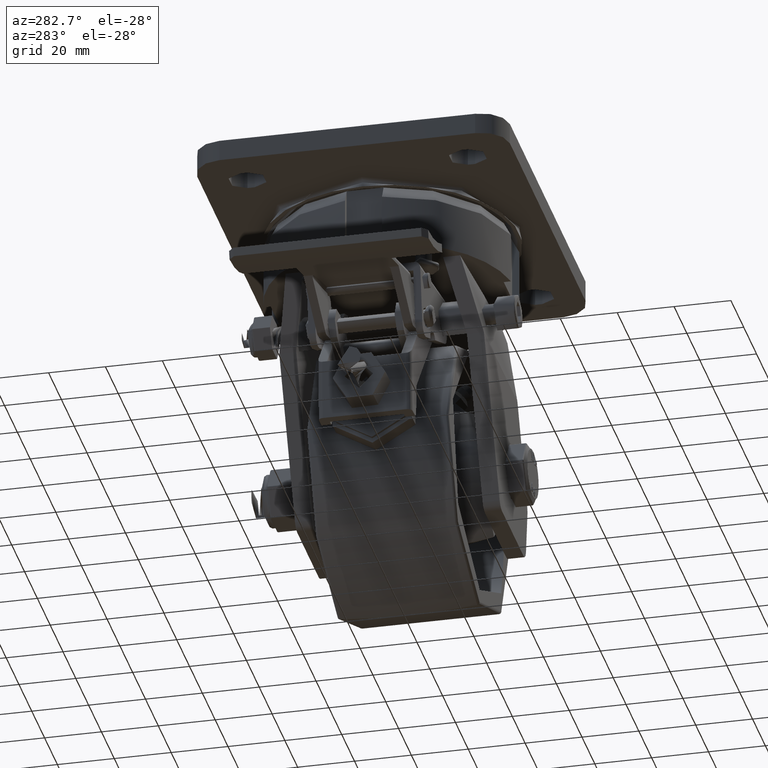
[diagram: clean part render]
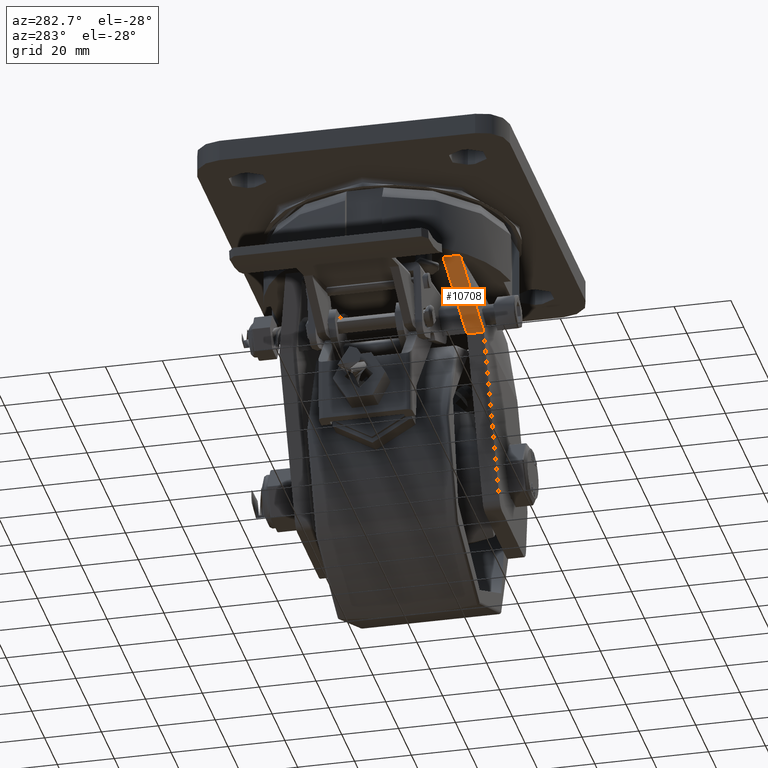
[diagram: same view with one face highlighted and labeled with its STEP entity id]
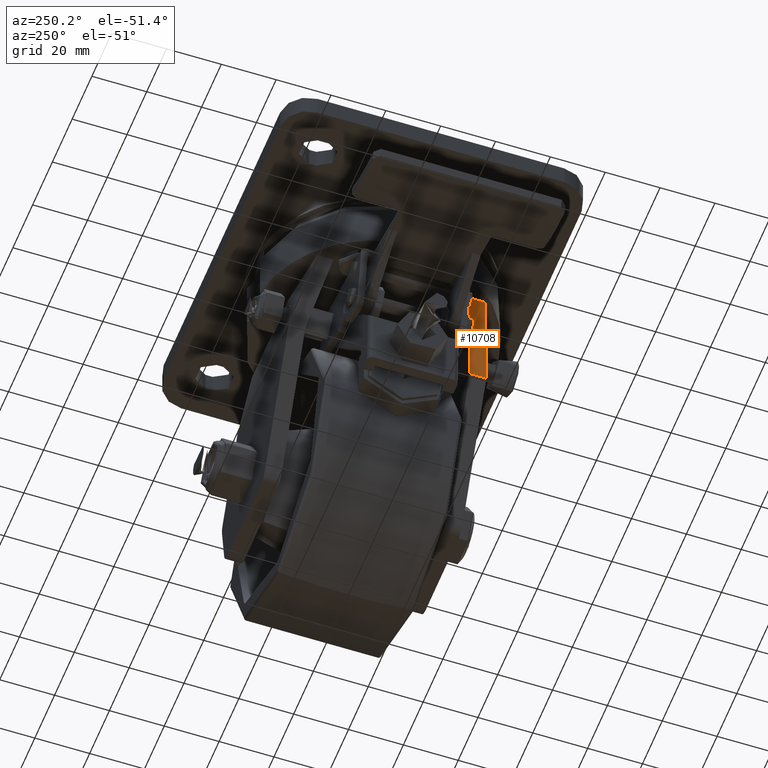
[diagram: same view with one face highlighted and labeled with its STEP entity id]
A machine part, auxiliary view. The second image highlights one B-rep face of the part: STEP entity #10708.
A second angle (auxiliary view) of the same face is appended — the face is thin or edge-on in the first view.
In plain terms, the highlighted face is a freeform B-spline surface patch.
Its self-contained STEP definition (entity closure, byte-faithful):
#181=B_SPLINE_SURFACE_WITH_KNOTS('',3,3,((#28149,#28150,#28151,#28152,#28153,
#28154,#28155,#28156,#28157,#28158),(#28159,#28160,#28161,#28162,#28163,
#28164,#28165,#28166,#28167,#28168),(#28169,#28170,#28171,#28172,#28173,
#28174,#28175,#28176,#28177,#28178),(#28179,#28180,#28181,#28182,#28183,
#28184,#28185,#28186,#28187,#28188),(#28189,#28190,#28191,#28192,#28193,
#28194,#28195,#28196,#28197,#28198),(#28199,#28200,#28201,#28202,#28203,
#28204,#28205,#28206,#28207,#28208),(#28209,#28210,#28211,#28212,#28213,
#28214,#28215,#28216,#28217,#28218),(#28219,#28220,#28221,#28222,#28223,
#28224,#28225,#28226,#28227,#28228),(#28229,#28230,#28231,#28232,#28233,
#28234,#28235,#28236,#28237,#28238),(#28239,#28240,#28241,#28242,#28243,
#28244,#28245,#28246,#28247,#28248),(#28249,#28250,#28251,#28252,#28253,
#28254,#28255,#28256,#28257,#28258),(#28259,#28260,#28261,#28262,#28263,
#28264,#28265,#28266,#28267,#28268)),.UNSPECIFIED.,.F.,.F.,.F.,(4,3,2,3,
4),(4,3,3,4),(-0.00418501395277111,0.,0.5,1.,1.22379412689119),(-0.0187448871476537,
0.,1.,1.01874488714353),.UNSPECIFIED.);
#1078=B_SPLINE_CURVE_WITH_KNOTS('',3,(#28133,#28134,#28135,#28136,#28137,
#28138,#28139,#28140,#28141,#28142,#28143,#28144,#28145,#28146,#28147,#28148),
 .UNSPECIFIED.,.F.,.F.,(4,2,2,2,2,2,2,4),(9.99999999505602E-7,0.0366375855957589,
0.0611402993362532,0.109742746484001,0.205351552806845,0.388218751631059,
0.560994474350536,0.717857281035021),.UNSPECIFIED.);
#1079=B_SPLINE_CURVE_WITH_KNOTS('',3,(#28270,#28271,#28272,#28273,#28274,
#28275,#28276,#28277,#28278,#28279),.UNSPECIFIED.,.F.,.F.,(4,2,2,2,4),(1.09375907150143E-7,
0.678767673548421,1.39816113454965,2.15377408914372,2.96856502057482),
 .UNSPECIFIED.);
#1645=FACE_OUTER_BOUND('',#2354,.T.);
#2354=EDGE_LOOP('',(#9059,#9060,#9061,#9062));
#3130=LINE('',#27899,#3928);
#3131=LINE('',#28280,#3929);
#3928=VECTOR('',#14247,1000.);
#3929=VECTOR('',#14248,1000.);
#5285=VERTEX_POINT('',#27878);
#5294=VERTEX_POINT('',#27897);
#5296=VERTEX_POINT('',#28061);
#5297=VERTEX_POINT('',#28269);
#6608=EDGE_CURVE('',#5294,#5285,#3130,.T.);
#6611=EDGE_CURVE('',#5296,#5285,#1078,.F.);
#6612=EDGE_CURVE('',#5297,#5294,#1079,.T.);
#6613=EDGE_CURVE('',#5296,#5297,#3131,.T.);
#9059=ORIENTED_EDGE('',*,*,#6608,.F.);
#9060=ORIENTED_EDGE('',*,*,#6612,.F.);
#9061=ORIENTED_EDGE('',*,*,#6613,.F.);
#9062=ORIENTED_EDGE('',*,*,#6611,.T.);
#10708=ADVANCED_FACE('',(#1645),#181,.T.);
#14247=DIRECTION('',(0.,1.,0.));
#14248=DIRECTION('',(0.,-1.,0.));
#27878=CARTESIAN_POINT('',(-15.2505434782609,-30.,-55.875));
#27897=CARTESIAN_POINT('',(-15.2505434782609,-36.,-55.875));
#27899=CARTESIAN_POINT('',(-15.2505434782609,-30.,-55.875));
#28061=CARTESIAN_POINT('',(-28.8749997377516,-24.6998927237828,-32.5000001981708));
#28133=CARTESIAN_POINT('Ctrl Pts',(-15.2505434784884,-30.,-55.874999999511));
#28134=CARTESIAN_POINT('Ctrl Pts',(-15.3020608214468,-29.9999999999985,
-55.7642617856771));
#28135=CARTESIAN_POINT('Ctrl Pts',(-15.4554446817101,-30.0000513771497,
-55.4347844506541));
#28136=CARTESIAN_POINT('Ctrl Pts',(-15.800324649446,-29.9817094646371,-54.7167920175317));
#28137=CARTESIAN_POINT('Ctrl Pts',(-15.9400493486329,-29.9705754725884,
-54.4303277393658));
#28138=CARTESIAN_POINT('Ctrl Pts',(-16.3621041688676,-29.9254169625219,
-53.5774323762149));
#28139=CARTESIAN_POINT('Ctrl Pts',(-16.6472905192837,-29.8798720694436,
-53.0172112423879));
#28140=CARTESIAN_POINT('Ctrl Pts',(-17.5126480550021,-29.6963096678783,
-51.3589393061947));
#28141=CARTESIAN_POINT('Ctrl Pts',(-18.0939859980672,-29.5149994251125,
-50.2971743181108));
#28142=CARTESIAN_POINT('Ctrl Pts',(-19.8532310077663,-28.832559945954,-47.1933805583533));
#28143=CARTESIAN_POINT('Ctrl Pts',(-21.045187070497,-28.2062561221951,-45.2248828950479));
#28144=CARTESIAN_POINT('Ctrl Pts',(-23.3673334355533,-27.0194314341696,
-41.4700786363529));
#28145=CARTESIAN_POINT('Ctrl Pts',(-24.3618936535878,-26.5283763353568,
-39.8968808051377));
#28146=CARTESIAN_POINT('Ctrl Pts',(-26.6411093302435,-25.5514678841035,
-36.2334484982903));
#28147=CARTESIAN_POINT('Ctrl Pts',(-27.365758517506,-25.2870093729066,-35.0893524053349));
#28148=CARTESIAN_POINT('Ctrl Pts',(-28.8749996534798,-24.6998926228944,
-32.5000005945124));
#28149=CARTESIAN_POINT('Ctrl Pts',(-29.1303888999481,-30.6223275142256,
-32.0618382629236));
#28150=CARTESIAN_POINT('Ctrl Pts',(-29.0452592666321,-30.6554440108377,
-32.2078921752824));
#28151=CARTESIAN_POINT('Ctrl Pts',(-28.9601296333161,-30.6885605074495,
-32.3539460876412));
#28152=CARTESIAN_POINT('Ctrl Pts',(-28.875,-30.7216770040616,-32.5));
#28153=CARTESIAN_POINT('Ctrl Pts',(-24.3335144927536,-32.4883719087163,
-40.2916666666667));
#28154=CARTESIAN_POINT('Ctrl Pts',(-19.1269479382619,-36.0217617180254,
-47.542541814951));
#28155=CARTESIAN_POINT('Ctrl Pts',(-15.2505434782609,-36.0217617180254,
-55.875));
#28156=CARTESIAN_POINT('Ctrl Pts',(-15.1778807141355,-36.0217617180254,
-56.0311909883069));
#28157=CARTESIAN_POINT('Ctrl Pts',(-15.1052179500101,-36.0217617180254,
-56.1873819766138));
#28158=CARTESIAN_POINT('Ctrl Pts',(-15.0325551858847,-36.0217617180254,
-56.3435729649207));
#28159=CARTESIAN_POINT('Ctrl Pts',(-29.1303888999481,-30.615073608217,-32.0618382629236));
#28160=CARTESIAN_POINT('Ctrl Pts',(-29.0452592666321,-30.6481901048292,
-32.2078921752824));
#28161=CARTESIAN_POINT('Ctrl Pts',(-28.9601296333161,-30.6813066014413,
-32.3539460876412));
#28162=CARTESIAN_POINT('Ctrl Pts',(-28.875,-30.7144230980534,-32.5));
#28163=CARTESIAN_POINT('Ctrl Pts',(-24.3335144927536,-32.4811180027079,
-40.2916666666667));
#28164=CARTESIAN_POINT('Ctrl Pts',(-19.1269479382619,-36.0145078120168,
-47.542541814951));
#28165=CARTESIAN_POINT('Ctrl Pts',(-15.2505434782609,-36.0145078120168,
-55.875));
#28166=CARTESIAN_POINT('Ctrl Pts',(-15.1778807141355,-36.0145078120168,
-56.0311909883069));
#28167=CARTESIAN_POINT('Ctrl Pts',(-15.1052179500101,-36.0145078120168,
-56.1873819766138));
#28168=CARTESIAN_POINT('Ctrl Pts',(-15.0325551858847,-36.0145078120168,
-56.3435729649207));
#28169=CARTESIAN_POINT('Ctrl Pts',(-29.1303888999481,-30.6078197022087,
-32.0618382629236));
#28170=CARTESIAN_POINT('Ctrl Pts',(-29.0452592666321,-30.6409361988207,
-32.2078921752824));
#28171=CARTESIAN_POINT('Ctrl Pts',(-28.9601296333161,-30.6740526954327,
-32.3539460876412));
#28172=CARTESIAN_POINT('Ctrl Pts',(-28.875,-30.7071691920449,-32.5));
#28173=CARTESIAN_POINT('Ctrl Pts',(-24.3335144927536,-32.4738640966993,
-40.2916666666667));
#28174=CARTESIAN_POINT('Ctrl Pts',(-19.1269479382619,-36.0072539060085,
-47.542541814951));
#28175=CARTESIAN_POINT('Ctrl Pts',(-15.2505434782609,-36.0072539060085,
-55.875));
#28176=CARTESIAN_POINT('Ctrl Pts',(-15.1778807141355,-36.0072539060085,
-56.0311909883069));
#28177=CARTESIAN_POINT('Ctrl Pts',(-15.1052179500101,-36.0072539060085,
-56.1873819766138));
#28178=CARTESIAN_POINT('Ctrl Pts',(-15.0325551858847,-36.0072539060085,
-56.3435729649207));
#28179=CARTESIAN_POINT('Ctrl Pts',(-29.1303888999481,-30.6005657962002,
-32.0618382629236));
#28180=CARTESIAN_POINT('Ctrl Pts',(-29.0452592666321,-30.6336822928123,
-32.2078921752824));
#28181=CARTESIAN_POINT('Ctrl Pts',(-28.9601296333161,-30.6667987894244,
-32.3539460876412));
#28182=CARTESIAN_POINT('Ctrl Pts',(-28.875,-30.6999152860365,-32.5));
#28183=CARTESIAN_POINT('Ctrl Pts',(-24.3335144927536,-32.466610190691,-40.2916666666667));
#28184=CARTESIAN_POINT('Ctrl Pts',(-19.1269479382619,-36.,-47.542541814951));
#28185=CARTESIAN_POINT('Ctrl Pts',(-15.2505434782609,-36.,-55.875));
#28186=CARTESIAN_POINT('Ctrl Pts',(-15.1778807141355,-36.,-56.0311909883069));
#28187=CARTESIAN_POINT('Ctrl Pts',(-15.1052179500101,-36.,-56.1873819766138));
#28188=CARTESIAN_POINT('Ctrl Pts',(-15.0325551858847,-36.,-56.3435729649207));
#28189=CARTESIAN_POINT('Ctrl Pts',(-29.1303888999481,-29.7339132485275,
-32.0618382629236));
#28190=CARTESIAN_POINT('Ctrl Pts',(-29.0452592666321,-29.7670297451395,
-32.2078921752824));
#28191=CARTESIAN_POINT('Ctrl Pts',(-28.9601296333161,-29.8001462417516,
-32.3539460876412));
#28192=CARTESIAN_POINT('Ctrl Pts',(-28.875,-29.8332627383637,-32.5));
#28193=CARTESIAN_POINT('Ctrl Pts',(-24.3335144927536,-31.5999576430182,
-40.2916666666667));
#28194=CARTESIAN_POINT('Ctrl Pts',(-19.126947938262,-35.1333474523273,-47.5425418149509));
#28195=CARTESIAN_POINT('Ctrl Pts',(-15.2505434782609,-35.1333474523273,
-55.875));
#28196=CARTESIAN_POINT('Ctrl Pts',(-15.1778807141355,-35.1333474523273,
-56.0311909883069));
#28197=CARTESIAN_POINT('Ctrl Pts',(-15.1052179500101,-35.1333474523273,
-56.1873819766138));
#28198=CARTESIAN_POINT('Ctrl Pts',(-15.0325551858847,-35.1333474523273,
-56.3435729649207));
#28199=CARTESIAN_POINT('Ctrl Pts',(-29.1303888999481,-28.8672607008547,
-32.0618382629236));
#28200=CARTESIAN_POINT('Ctrl Pts',(-29.0452592666321,-28.9003771974668,
-32.2078921752824));
#28201=CARTESIAN_POINT('Ctrl Pts',(-28.9601296333161,-28.9334936940789,
-32.3539460876412));
#28202=CARTESIAN_POINT('Ctrl Pts',(-28.875,-28.966610190691,-32.5));
#28203=CARTESIAN_POINT('Ctrl Pts',(-24.3335144927536,-30.7333050953455,
-40.2916666666667));
#28204=CARTESIAN_POINT('Ctrl Pts',(-19.126947938262,-34.2666949046545,-47.5425418149508));
#28205=CARTESIAN_POINT('Ctrl Pts',(-15.2505434782609,-34.2666949046545,
-55.875));
#28206=CARTESIAN_POINT('Ctrl Pts',(-15.1778807141355,-34.2666949046545,
-56.0311909883069));
#28207=CARTESIAN_POINT('Ctrl Pts',(-15.1052179500101,-34.2666949046545,
-56.1873819766138));
#28208=CARTESIAN_POINT('Ctrl Pts',(-15.0325551858847,-34.2666949046545,
-56.3435729649207));
#28209=CARTESIAN_POINT('Ctrl Pts',(-29.1303888999481,-27.1339556055092,
-32.0618382629236));
#28210=CARTESIAN_POINT('Ctrl Pts',(-29.0452592666321,-27.1670721021213,
-32.2078921752824));
#28211=CARTESIAN_POINT('Ctrl Pts',(-28.9601296333161,-27.2001885987334,
-32.3539460876412));
#28212=CARTESIAN_POINT('Ctrl Pts',(-28.875,-27.2333050953455,-32.5));
#28213=CARTESIAN_POINT('Ctrl Pts',(-24.3335144927536,-29.,-40.2916666666667));
#28214=CARTESIAN_POINT('Ctrl Pts',(-19.126947938262,-32.533389809309,-47.5425418149508));
#28215=CARTESIAN_POINT('Ctrl Pts',(-15.2505434782609,-32.533389809309,-55.875));
#28216=CARTESIAN_POINT('Ctrl Pts',(-15.1778807141355,-32.533389809309,-56.0311909883069));
#28217=CARTESIAN_POINT('Ctrl Pts',(-15.1052179500101,-32.533389809309,-56.1873819766138));
#28218=CARTESIAN_POINT('Ctrl Pts',(-15.0325551858847,-32.533389809309,-56.3435729649207));
#28219=CARTESIAN_POINT('Ctrl Pts',(-29.1303888999481,-26.2673030578365,
-32.0618382629236));
#28220=CARTESIAN_POINT('Ctrl Pts',(-29.0452592666321,-26.3004195544486,
-32.2078921752824));
#28221=CARTESIAN_POINT('Ctrl Pts',(-28.9601296333161,-26.3335360510607,
-32.3539460876412));
#28222=CARTESIAN_POINT('Ctrl Pts',(-28.875,-26.3666525476727,-32.5));
#28223=CARTESIAN_POINT('Ctrl Pts',(-24.3335144927536,-28.1333474523273,
-40.2916666666667));
#28224=CARTESIAN_POINT('Ctrl Pts',(-19.126947938262,-31.6667372616363,-47.5425418149509));
#28225=CARTESIAN_POINT('Ctrl Pts',(-15.2505434782609,-31.6667372616363,
-55.875));
#28226=CARTESIAN_POINT('Ctrl Pts',(-15.1778807141355,-31.6667372616363,
-56.0311909883069));
#28227=CARTESIAN_POINT('Ctrl Pts',(-15.1052179500101,-31.6667372616363,
-56.1873819766138));
#28228=CARTESIAN_POINT('Ctrl Pts',(-15.0325551858847,-31.6667372616363,
-56.3435729649207));
#28229=CARTESIAN_POINT('Ctrl Pts',(-29.1303888999481,-25.4006505101638,
-32.0618382629236));
#28230=CARTESIAN_POINT('Ctrl Pts',(-29.0452592666321,-25.4337670067758,
-32.2078921752824));
#28231=CARTESIAN_POINT('Ctrl Pts',(-28.9601296333161,-25.4668835033879,
-32.3539460876412));
#28232=CARTESIAN_POINT('Ctrl Pts',(-28.875,-25.5,-32.5));
#28233=CARTESIAN_POINT('Ctrl Pts',(-24.3335144927536,-27.2666949046545,
-40.2916666666667));
#28234=CARTESIAN_POINT('Ctrl Pts',(-19.1269479382619,-30.8000847139635,
-47.542541814951));
#28235=CARTESIAN_POINT('Ctrl Pts',(-15.2505434782609,-30.8000847139635,
-55.875));
#28236=CARTESIAN_POINT('Ctrl Pts',(-15.1778807141355,-30.8000847139635,
-56.0311909883069));
#28237=CARTESIAN_POINT('Ctrl Pts',(-15.1052179500101,-30.8000847139635,
-56.1873819766138));
#28238=CARTESIAN_POINT('Ctrl Pts',(-15.0325551858847,-30.8000847139635,
-56.3435729649207));
#28239=CARTESIAN_POINT('Ctrl Pts',(-29.1303888999481,-25.0127470097149,
-32.0618382629236));
#28240=CARTESIAN_POINT('Ctrl Pts',(-29.0452592666321,-25.0458635063269,
-32.2078921752824));
#28241=CARTESIAN_POINT('Ctrl Pts',(-28.9601296333161,-25.078980002939,-32.3539460876412));
#28242=CARTESIAN_POINT('Ctrl Pts',(-28.875,-25.1120964995511,-32.5));
#28243=CARTESIAN_POINT('Ctrl Pts',(-24.3335144927536,-26.8787914042056,
-40.2916666666667));
#28244=CARTESIAN_POINT('Ctrl Pts',(-19.1269479382619,-30.4121812135147,
-47.5425418149511));
#28245=CARTESIAN_POINT('Ctrl Pts',(-15.2505434782609,-30.4121812135147,
-55.875));
#28246=CARTESIAN_POINT('Ctrl Pts',(-15.1778807141355,-30.4121812135147,
-56.0311909883069));
#28247=CARTESIAN_POINT('Ctrl Pts',(-15.1052179500101,-30.4121812135147,
-56.1873819766138));
#28248=CARTESIAN_POINT('Ctrl Pts',(-15.0325551858847,-30.4121812135147,
-56.3435729649207));
#28249=CARTESIAN_POINT('Ctrl Pts',(-29.1303888999481,-24.624843509266,-32.0618382629236));
#28250=CARTESIAN_POINT('Ctrl Pts',(-29.0452592666321,-24.657960005878,-32.2078921752824));
#28251=CARTESIAN_POINT('Ctrl Pts',(-28.9601296333161,-24.6910765024901,
-32.3539460876412));
#28252=CARTESIAN_POINT('Ctrl Pts',(-28.875,-24.7241929991022,-32.5));
#28253=CARTESIAN_POINT('Ctrl Pts',(-24.3335144927536,-26.4908879037567,
-40.2916666666667));
#28254=CARTESIAN_POINT('Ctrl Pts',(-19.1269479382619,-30.0242777130658,
-47.5425418149511));
#28255=CARTESIAN_POINT('Ctrl Pts',(-15.2505434782609,-30.0242777130658,
-55.875));
#28256=CARTESIAN_POINT('Ctrl Pts',(-15.1778807141355,-30.0242777130658,
-56.0311909883069));
#28257=CARTESIAN_POINT('Ctrl Pts',(-15.1052179500101,-30.0242777130658,
-56.1873819766138));
#28258=CARTESIAN_POINT('Ctrl Pts',(-15.0325551858847,-30.0242777130658,
-56.3435729649207));
#28259=CARTESIAN_POINT('Ctrl Pts',(-29.1303888999481,-24.2369400088171,
-32.0618382629236));
#28260=CARTESIAN_POINT('Ctrl Pts',(-29.0452592666321,-24.2700565054292,
-32.2078921752824));
#28261=CARTESIAN_POINT('Ctrl Pts',(-28.9601296333161,-24.3031730020412,
-32.3539460876412));
#28262=CARTESIAN_POINT('Ctrl Pts',(-28.875,-24.3362894986533,-32.5));
#28263=CARTESIAN_POINT('Ctrl Pts',(-24.3335144927536,-26.1029844033078,
-40.2916666666667));
#28264=CARTESIAN_POINT('Ctrl Pts',(-19.1269479382618,-29.6363742126169,
-47.5425418149512));
#28265=CARTESIAN_POINT('Ctrl Pts',(-15.2505434782609,-29.6363742126169,
-55.875));
#28266=CARTESIAN_POINT('Ctrl Pts',(-15.1778807141355,-29.6363742126169,
-56.0311909883069));
#28267=CARTESIAN_POINT('Ctrl Pts',(-15.1052179500101,-29.6363742126169,
-56.1873819766138));
#28268=CARTESIAN_POINT('Ctrl Pts',(-15.0325551858847,-29.6363742126169,
-56.3435729649207));
#28269=CARTESIAN_POINT('',(-28.8750006202089,-30.6999061594167,-32.5000001852847));
#28270=CARTESIAN_POINT('Ctrl Pts',(-28.8749994594905,-30.6998999030215,
-32.5000009273331));
#28271=CARTESIAN_POINT('Ctrl Pts',(-27.7568972229095,-31.1348572290713,
-34.4182895057262));
#28272=CARTESIAN_POINT('Ctrl Pts',(-26.6405578532942,-31.5448670017072,
-36.2372270544722));
#28273=CARTESIAN_POINT('Ctrl Pts',(-24.0109016563695,-32.6872122921441,
-40.4574729612945));
#28274=CARTESIAN_POINT('Ctrl Pts',(-22.9101867219103,-33.2521595558917,
-42.2019194292182));
#28275=CARTESIAN_POINT('Ctrl Pts',(-20.7425993261884,-34.362519024337,-45.7251020947023));
#28276=CARTESIAN_POINT('Ctrl Pts',(-19.5982715202932,-34.9474934870807,
-47.6296904092144));
#28277=CARTESIAN_POINT('Ctrl Pts',(-17.3229891702386,-35.7935792409621,
-51.6747034233728));
#28278=CARTESIAN_POINT('Ctrl Pts',(-16.2767161901939,-36.,-53.669208189303));
#28279=CARTESIAN_POINT('Ctrl Pts',(-15.2505434782609,-36.,-55.875));
#28280=CARTESIAN_POINT('',(-28.875,-25.5,-32.5));